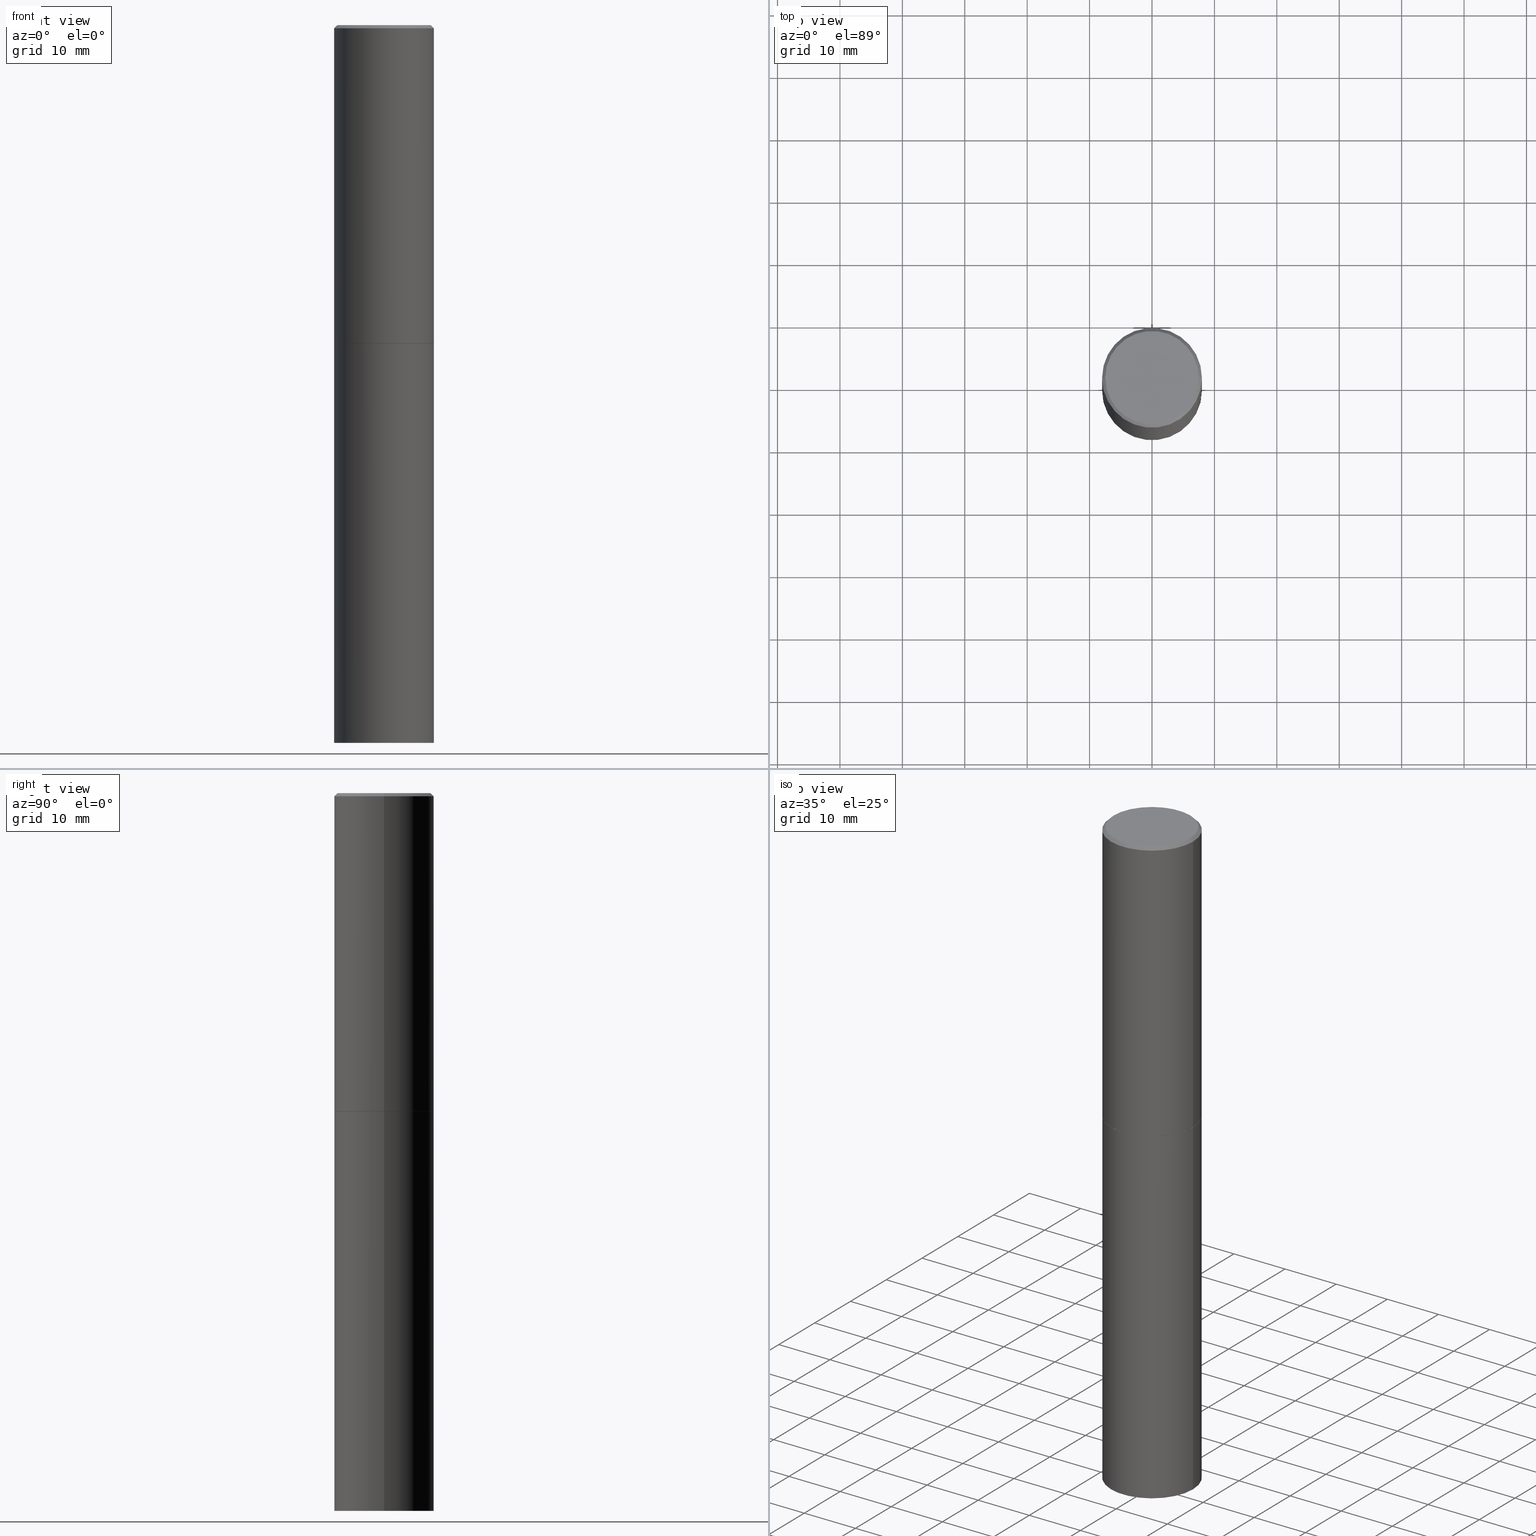
[diagram: canonical four-view strip — front | top / right | iso, engineering-drawing reading convention]
A machine part, canonical four-view strip (front | top / right | iso — engineering-drawing reading convention). The complete STEP part file that produces these views, byte-faithful:
ISO-10303-21;
HEADER;
FILE_DESCRIPTION (( 'STEP AP203' ),
    '1' );
FILE_NAME ('74495.STEP',
    '2024-02-29T12:04:53',
    ( '' ),
    ( '' ),
    'SwSTEP 2.0',
    'SolidWorks 2023',
    '' );
FILE_SCHEMA (( 'CONFIG_CONTROL_DESIGN' ));
ENDSEC;

DATA;
#1 = DIRECTION ( 'NONE',  ( -2.445468806185136597E-29, 3.491481338843145583E-15, 1.000000000000000000 ) ) ;
#2 = CARTESIAN_POINT ( 'NONE',  ( 0.3149500000000000077, -1.800731500508351534E-14, -4.527599999999999625 ) ) ;
#3 = CC_DESIGN_PERSON_AND_ORGANIZATION_ASSIGNMENT ( #151, #43, ( #305 ) ) ;
#4 = MANIFOLD_SOLID_BREP ( 'Body-Move/Copy2[1]', #260 ) ;
#5 = DIRECTION ( 'NONE',  ( 1.000000000000000000, -6.982962677686266711E-15, 4.876176775795936353E-29 ) ) ;
#6 = CIRCLE ( 'NONE', #313, 0.3149499999999997302 ) ;
#7 = DIRECTION ( 'NONE',  ( -0.7071067811865466846, 2.468850131082247989E-15, -0.7071067811865483499 ) ) ;
#8 = DIMENSIONAL_EXPONENTS ( 1.000000000000000000, 0.000000000000000000, 0.000000000000000000, 0.000000000000000000, 0.000000000000000000, 0.000000000000000000, 0.000000000000000000 ) ;
#9 = MANIFOLD_SOLID_BREP ( 'Body-Move/Copy2[2]', #255 ) ;
#10 = COORDINATED_UNIVERSAL_TIME_OFFSET ( 5, 0, .BEHIND. ) ;
#11 = ORIENTED_EDGE ( 'NONE', *, *, #22, .T. ) ;
#12 = AXIS2_PLACEMENT_3D ( 'NONE', #120, #138, #5 ) ;
#13 = EDGE_LOOP ( 'NONE', ( #298, #51, #235, #209 ) ) ;
#14 = CALENDAR_DATE ( 2024, 29, 2 ) ;
#15 = VERTEX_POINT ( 'NONE', #360 ) ;
#16 = DIRECTION ( 'NONE',  ( 0.000000000000000000, 0.000000000000000000, 1.000000000000000000 ) ) ;
#17 = ORIENTED_EDGE ( 'NONE', *, *, #269, .T. ) ;
#18 = AXIS2_PLACEMENT_3D ( 'NONE', #241, #301, #218 ) ;
#19 = ORGANIZATION ( 'UNSPECIFIED', 'UNSPECIFIED', '' ) ;
#20 = ORIENTED_EDGE ( 'NONE', *, *, #95, .T. ) ;
#21 = DATE_AND_TIME ( #215, #115 ) ;
#22 = EDGE_CURVE ( 'NONE', #127, #15, #30, .T. ) ;
#23 = LINE ( 'NONE', #122, #178 ) ;
#24 = EDGE_CURVE ( 'NONE', #232, #320, #361, .T. ) ;
#25 = VERTEX_POINT ( 'NONE', #137 ) ;
#26 = AXIS2_PLACEMENT_3D ( 'NONE', #88, #192, #276 ) ;
#27 = DIRECTION ( 'NONE',  ( -2.445468806185136597E-29, 3.491481338843145583E-15, 1.000000000000000000 ) ) ;
#28 = CARTESIAN_POINT ( 'NONE',  ( 2.199284095337338386E-15, 0.3149499999999929578, -2.007900000000000240 ) ) ;
#29 = DIRECTION ( 'NONE',  ( -2.445468806185136597E-29, 3.491481338843145583E-15, 1.000000000000000000 ) ) ;
#30 = CIRCLE ( 'NONE', #278, 0.3149500000000000077 ) ;
#31 = AXIS2_PLACEMENT_3D ( 'NONE', #277, #125, #177 ) ;
#32 = DIRECTION ( 'NONE',  ( 1.000000000000000000, -6.982962677686267499E-15, 4.876053491004739391E-29 ) ) ;
#33 = DIRECTION ( 'NONE',  ( 1.000000000000000000, -6.982962677686266711E-15, 0.000000000000000000 ) ) ;
#34 = PRODUCT ( '74495', '74495', '', ( #70 ) ) ;
#35 = DIRECTION ( 'NONE',  ( -2.445468806185136597E-29, 3.491481338843145583E-15, 1.000000000000000000 ) ) ;
#36 = LINE ( 'NONE', #283, #37 ) ;
#37 = VECTOR ( 'NONE', #341, 39.37007874015748143 ) ;
#38 = DATE_AND_TIME ( #40, #231 ) ;
#39 = ADVANCED_FACE ( 'NONE', ( #188 ), #134, .T. ) ;
#40 = CALENDAR_DATE ( 2024, 29, 2 ) ;
#41 = ORIENTED_EDGE ( 'NONE', *, *, #240, .T. ) ;
#42 = ADVANCED_FACE ( 'NONE', ( #110 ), #239, .F. ) ;
#43 = PERSON_AND_ORGANIZATION_ROLE ( 'classification_officer' ) ;
#44 = ORIENTED_EDGE ( 'NONE', *, *, #337, .T. ) ;
#45 = AXIS2_PLACEMENT_3D ( 'NONE', #317, #1, #32 ) ;
#46 = ADVANCED_BREP_SHAPE_REPRESENTATION ( '74495', ( #4, #9, #335 ), #267 ) ;
#47 = PRODUCT_DEFINITION_FORMATION_WITH_SPECIFIED_SOURCE ( 'ANY', '', #34, .NOT_KNOWN. ) ;
#48 = APPROVAL_STATUS ( 'not_yet_approved' ) ;
#49 = ORIENTED_EDGE ( 'NONE', *, *, #342, .F. ) ;
#50 = CARTESIAN_POINT ( 'NONE',  ( 0.000000000000000000, 0.000000000000000000, 0.000000000000000000 ) ) ;
#51 = ORIENTED_EDGE ( 'NONE', *, *, #111, .T. ) ;
#52 = ORIENTED_EDGE ( 'NONE', *, *, #289, .T. ) ;
#53 = CARTESIAN_POINT ( 'NONE',  ( 1.107210456688382298E-28, -1.580803090974622389E-14, -4.527599999999999625 ) ) ;
#54 = DIRECTION ( 'NONE',  ( 1.000000000000000000, -6.982962677686266711E-15, 0.000000000000000000 ) ) ;
#55 = DIRECTION ( 'NONE',  ( -1.000000000000000000, 6.982962677686266711E-15, 0.000000000000000000 ) ) ;
#56 = CIRCLE ( 'NONE', #256, 0.3139500000000000068 ) ;
#57 = CARTESIAN_POINT ( 'NONE',  ( 0.000000000000000000, 0.000000000000000000, 0.000000000000000000 ) ) ;
#58 = FACE_OUTER_BOUND ( 'NONE', #291, .T. ) ;
#59 = DIRECTION ( 'NONE',  ( -0.7071067811865232589, 7.493145998870265808E-15, 0.7071067811865715536 ) ) ;
#60 = FACE_OUTER_BOUND ( 'NONE', #100, .T. ) ;
#61 = EDGE_CURVE ( 'NONE', #323, #131, #87, .T. ) ;
#62 = CARTESIAN_POINT ( 'NONE',  ( 4.910256815939134188E-29, -7.010545380263150133E-15, -2.007899999999999352 ) ) ;
#63 = APPLICATION_CONTEXT ( 'configuration controlled 3d designs of mechanical parts and assemblies' ) ;
#64 = CARTESIAN_POINT ( 'NONE',  ( 0.3149499999999998967, -2.199284095337288688E-15, 1.535751875536929289E-29 ) ) ;
#65 = DIRECTION ( 'NONE',  ( 1.000000000000000000, -6.982962677686265922E-15, 4.876176775795935232E-29 ) ) ;
#66 = APPROVAL_ROLE ( '' ) ;
#67 = ORIENTED_EDGE ( 'NONE', *, *, #24, .T. ) ;
#68 = PERSON_AND_ORGANIZATION_ROLE ( 'design_supplier' ) ;
#69 = ORIENTED_EDGE ( 'NONE', *, *, #322, .T. ) ;
#70 = MECHANICAL_CONTEXT ( 'NONE', #63, 'mechanical' ) ;
#71 = UNCERTAINTY_MEASURE_WITH_UNIT (LENGTH_MEASURE( 1.000000000000000082E-05 ), #234, 'distance_accuracy_value', 'NONE');
#72 = ORIENTED_EDGE ( 'NONE', *, *, #217, .T. ) ;
#73 = AXIS2_PLACEMENT_3D ( 'NONE', #89, #123, #198 ) ;
#74 = DIRECTION ( 'NONE',  ( 1.000000000000000000, 0.000000000000000000, 0.000000000000000000 ) ) ;
#75 = VERTEX_POINT ( 'NONE', #334 ) ;
#76 = ORIENTED_EDGE ( 'NONE', *, *, #294, .F. ) ;
#77 = EDGE_CURVE ( 'NONE', #265, #25, #340, .T. ) ;
#78 = CARTESIAN_POINT ( 'NONE',  ( 4.890937612370289799E-31, -6.982962677686315028E-17, -0.02000000000000006981 ) ) ;
#79 = EDGE_CURVE ( 'NONE', #25, #323, #161, .T. ) ;
#80 = LOCAL_TIME ( 7, 4, 53.00000000000000000, #174 ) ;
#81 = DIRECTION ( 'NONE',  ( 1.000000000000000000, -6.982962677686269866E-15, 0.000000000000000000 ) ) ;
#82 = SHAPE_DEFINITION_REPRESENTATION ( #343, #46 ) ;
#83 = DIRECTION ( 'NONE',  ( 1.000000000000000000, -6.982962677686269866E-15, 0.000000000000000000 ) ) ;
#84 = PRODUCT_RELATED_PRODUCT_CATEGORY ( 'detail', '', ( #34 ) ) ;
#85 = APPLICATION_CONTEXT ( 'configuration controlled 3d designs of mechanical parts and assemblies' ) ;
#86 = DIRECTION ( 'NONE',  ( -2.445468806185136877E-29, 3.491481338843145188E-15, 1.000000000000000000 ) ) ;
#87 = CIRCLE ( 'NONE', #285, 0.3149500000000000077 ) ;
#88 = CARTESIAN_POINT ( 'NONE',  ( 4.910256815939134188E-29, -7.010545380263150133E-15, -2.007899999999999352 ) ) ;
#89 = CARTESIAN_POINT ( 'NONE',  ( 0.000000000000000000, 0.000000000000000000, 0.000000000000000000 ) ) ;
#90 = EDGE_CURVE ( 'NONE', #15, #127, #155, .T. ) ;
#91 = CARTESIAN_POINT ( 'NONE',  ( 0.3149500000000000077, -2.199284095337289871E-15, 1.535751875536930130E-29 ) ) ;
#92 = CONICAL_SURFACE ( 'NONE', #292, 0.3139500000000000068, 0.7853981633974141952 ) ;
#93 = FACE_OUTER_BOUND ( 'NONE', #205, .T. ) ;
#94 = DIRECTION ( 'NONE',  ( -2.445468806185136877E-29, 3.491481338843145188E-15, 1.000000000000000000 ) ) ;
#95 = EDGE_CURVE ( 'NONE', #105, #148, #299, .T. ) ;
#96 = CYLINDRICAL_SURFACE ( 'NONE', #12, 0.3149500000000000077 ) ;
#97 = APPROVAL_DATE_TIME ( #107, #219 ) ;
#98 = ORIENTED_EDGE ( 'NONE', *, *, #282, .T. ) ;
#99 = PERSON_AND_ORGANIZATION ( #253, #19 ) ;
#100 = EDGE_LOOP ( 'NONE', ( #41, #67 ) ) ;
#101 = APPROVAL ( #300, 'UNSPECIFIED' ) ;
#102 = PERSON_AND_ORGANIZATION ( #253, #19 ) ;
#103 = ORIENTED_EDGE ( 'NONE', *, *, #180, .F. ) ;
#104 = PERSON_AND_ORGANIZATION ( #253, #19 ) ;
#105 = VERTEX_POINT ( 'NONE', #364 ) ;
#106 = CC_DESIGN_APPROVAL ( #154, ( #47 ) ) ;
#107 = DATE_AND_TIME ( #14, #197 ) ;
#108 = ORIENTED_EDGE ( 'NONE', *, *, #90, .F. ) ;
#109 = DIRECTION ( 'NONE',  ( 1.000000000000000000, -6.982962677686266711E-15, 0.000000000000000000 ) ) ;
#110 = FACE_OUTER_BOUND ( 'NONE', #132, .T. ) ;
#111 = EDGE_CURVE ( 'NONE', #25, #265, #130, .T. ) ;
#112 = DIRECTION ( 'NONE',  ( -2.438088387897960049E-29, 3.491481338843145188E-15, 1.000000000000000000 ) ) ;
#113 = CARTESIAN_POINT ( 'NONE',  ( 4.910256815939134188E-29, -7.010545380263150133E-15, -2.007899999999999352 ) ) ;
#114 = ORIENTED_EDGE ( 'NONE', *, *, #251, .T. ) ;
#115 = LOCAL_TIME ( 7, 4, 53.00000000000000000, #185 ) ;
#116 = FACE_OUTER_BOUND ( 'NONE', #297, .T. ) ;
#117 = ADVANCED_FACE ( 'NONE', ( #246 ), #230, .T. ) ;
#118 = CC_DESIGN_PERSON_AND_ORGANIZATION_ASSIGNMENT ( #237, #324, ( #47 ) ) ;
#119 = DIRECTION ( 'NONE',  ( -2.445468806185136877E-29, 3.491481338843145188E-15, 1.000000000000000000 ) ) ;
#120 = CARTESIAN_POINT ( 'NONE',  ( 0.000000000000000000, 0.000000000000000000, 0.000000000000000000 ) ) ;
#121 = AXIS2_PLACEMENT_3D ( 'NONE', #78, #187, #157 ) ;
#122 = CARTESIAN_POINT ( 'NONE',  ( -0.3139500000000000068, -4.779796461344314367E-15, -2.007899999999999352 ) ) ;
#123 = DIRECTION ( 'NONE',  ( -2.445468806185136597E-29, 3.491481338843145583E-15, 1.000000000000000000 ) ) ;
#124 = PERSON_AND_ORGANIZATION ( #253, #19 ) ;
#125 = DIRECTION ( 'NONE',  ( -2.445468806185136597E-29, 3.491481338843145583E-15, 1.000000000000000000 ) ) ;
#126 = EDGE_LOOP ( 'NONE', ( #355, #288, #72, #52 ) ) ;
#127 = VERTEX_POINT ( 'NONE', #162 ) ;
#128 = SECURITY_CLASSIFICATION_LEVEL ( 'unclassified' ) ;
#129 = ORIENTED_EDGE ( 'NONE', *, *, #289, .F. ) ;
#130 = CIRCLE ( 'NONE', #221, 0.3149500000000000077 ) ;
#131 = VERTEX_POINT ( 'NONE', #365 ) ;
#132 = EDGE_LOOP ( 'NONE', ( #263, #49 ) ) ;
#133 = DIRECTION ( 'NONE',  ( 1.000000000000000000, -6.982962677686266711E-15, 0.000000000000000000 ) ) ;
#134 = CYLINDRICAL_SURFACE ( 'NONE', #348, 0.3149500000000000077 ) ;
#135 = AXIS2_PLACEMENT_3D ( 'NONE', #170, #140, #167 ) ;
#136 = DIRECTION ( 'NONE',  ( 2.438088387897960049E-29, -3.491481338843145188E-15, -1.000000000000000000 ) ) ;
#137 = CARTESIAN_POINT ( 'NONE',  ( -0.3149500000000000077, -9.171433798728249845E-15, -4.527599999999999625 ) ) ;
#138 = DIRECTION ( 'NONE',  ( -2.445468806185136597E-29, 3.491481338843145583E-15, 1.000000000000000000 ) ) ;
#139 = ADVANCED_FACE ( 'NONE', ( #270 ), #274, .F. ) ;
#140 = DIRECTION ( 'NONE',  ( 2.438088387897960049E-29, -3.491481338843145188E-15, -1.000000000000000000 ) ) ;
#141 = PLANE ( 'NONE',  #135 ) ;
#142 = CYLINDRICAL_SURFACE ( 'NONE', #273, 0.3149499999999998967 ) ;
#143 = CC_DESIGN_APPROVAL ( #101, ( #305 ) ) ;
#144 = DIRECTION ( 'NONE',  ( -2.445468806185136597E-29, 3.491481338843145583E-15, 1.000000000000000000 ) ) ;
#145 = LENGTH_MEASURE_WITH_UNIT ( LENGTH_MEASURE( 0.02539999999999999897 ), #350 );
#146 = EDGE_CURVE ( 'NONE', #131, #323, #186, .T. ) ;
#147 = CALENDAR_DATE ( 2024, 29, 2 ) ;
#148 = VERTEX_POINT ( 'NONE', #307 ) ;
#149 = COORDINATED_UNIVERSAL_TIME_OFFSET ( 5, 0, .BEHIND. ) ;
#150 = ORIENTED_EDGE ( 'NONE', *, *, #342, .T. ) ;
#151 = PERSON_AND_ORGANIZATION ( #253, #19 ) ;
#152 = ORIENTED_EDGE ( 'NONE', *, *, #90, .T. ) ;
#153 = EDGE_LOOP ( 'NONE', ( #328, #268 ) ) ;
#154 = APPROVAL ( #202, 'UNSPECIFIED' ) ;
#155 = CIRCLE ( 'NONE', #248, 0.3149500000000000077 ) ;
#156 = ORIENTED_EDGE ( 'NONE', *, *, #95, .F. ) ;
#157 = DIRECTION ( 'NONE',  ( -1.000000000000000000, 6.982962677686266711E-15, 0.000000000000000000 ) ) ;
#158 = CC_DESIGN_PERSON_AND_ORGANIZATION_ASSIGNMENT ( #124, #352, ( #34 ) ) ;
#159 = ADVANCED_FACE ( 'NONE', ( #58 ), #92, .T. ) ;
#160 = APPROVAL_DATE_TIME ( #21, #101 ) ;
#161 = LINE ( 'NONE', #213, #201 ) ;
#162 = CARTESIAN_POINT ( 'NONE',  ( -0.3149500000000000077, -1.300587416574147649E-15, -2.006899999999999462 ) ) ;
#163 = ADVANCED_FACE ( 'NONE', ( #329 ), #272, .T. ) ;
#164 = AXIS2_PLACEMENT_3D ( 'NONE', #62, #194, #33 ) ;
#165 = DIRECTION ( 'NONE',  ( -2.445468806185136597E-29, 3.491481338843145583E-15, 1.000000000000000000 ) ) ;
#166 = CARTESIAN_POINT ( 'NONE',  ( 4.910256815939134188E-29, -7.010545380263150133E-15, -2.007899999999999352 ) ) ;
#167 = DIRECTION ( 'NONE',  ( -1.000000000000000000, 6.982962677686265922E-15, -4.876176775795935793E-29 ) ) ;
#168 = AXIS2_PLACEMENT_3D ( 'NONE', #28, #136, #220 ) ;
#169 = CIRCLE ( 'NONE', #45, 0.2949499999999997124 ) ;
#170 = CARTESIAN_POINT ( 'NONE',  ( 2.199284095337399917E-15, 0.3149499999999842426, -4.527600000000000513 ) ) ;
#171 = PLANE ( 'NONE',  #279 ) ;
#172 = DIRECTION ( 'NONE',  ( -2.445468806185136877E-29, 3.491481338843145188E-15, 1.000000000000000000 ) ) ;
#173 = DIRECTION ( 'NONE',  ( -2.445468806185136597E-29, 3.491481338843145583E-15, 1.000000000000000000 ) ) ;
#174 = COORDINATED_UNIVERSAL_TIME_OFFSET ( 5, 0, .BEHIND. ) ;
#175 = ORIENTED_EDGE ( 'NONE', *, *, #77, .T. ) ;
#176 = PRODUCT_DEFINITION ( 'UNKNOWN', '', #47, #212 ) ;
#177 = DIRECTION ( 'NONE',  ( 1.000000000000000000, -6.982962677686266711E-15, 0.000000000000000000 ) ) ;
#178 = VECTOR ( 'NONE', #59, 39.37007874015748854 ) ;
#179 = ORIENTED_EDGE ( 'NONE', *, *, #217, .F. ) ;
#180 = EDGE_CURVE ( 'NONE', #207, #127, #23, .T. ) ;
#181 = CALENDAR_DATE ( 2024, 29, 2 ) ;
#182 = ORIENTED_EDGE ( 'NONE', *, *, #77, .F. ) ;
#183 = PERSON_AND_ORGANIZATION_ROLE ( 'creator' ) ;
#184 = EDGE_LOOP ( 'NONE', ( #182, #353 ) ) ;
#185 = COORDINATED_UNIVERSAL_TIME_OFFSET ( 5, 0, .BEHIND. ) ;
#186 = CIRCLE ( 'NONE', #26, 0.3149500000000000077 ) ;
#187 = DIRECTION ( 'NONE',  ( 2.445468806185136597E-29, -3.491481338843145583E-15, -1.000000000000000000 ) ) ;
#188 = FACE_OUTER_BOUND ( 'NONE', #327, .T. ) ;
#189 = CARTESIAN_POINT ( 'NONE',  ( 4.890937612370289799E-31, -6.982962677686315028E-17, -0.02000000000000006981 ) ) ;
#190 = CARTESIAN_POINT ( 'NONE',  ( 4.907811347132949146E-29, -7.007053898924306337E-15, -2.006899999999999462 ) ) ;
#191 = AXIS2_PLACEMENT_3D ( 'NONE', #113, #112, #336 ) ;
#192 = DIRECTION ( 'NONE',  ( -2.445468806185136597E-29, 3.491481338843145583E-15, 1.000000000000000000 ) ) ;
#193 = DIRECTION ( 'NONE',  ( -1.000000000000000000, 6.982962677686265922E-15, -4.876176775795935793E-29 ) ) ;
#194 = DIRECTION ( 'NONE',  ( -2.445468806185136597E-29, 3.491481338843145583E-15, 1.000000000000000000 ) ) ;
#195 = AXIS2_PLACEMENT_3D ( 'NONE', #189, #304, #55 ) ;
#196 = LOCAL_TIME ( 7, 4, 53.00000000000000000, #149 ) ;
#197 = LOCAL_TIME ( 7, 4, 53.00000000000000000, #346 ) ;
#198 = DIRECTION ( 'NONE',  ( 1.000000000000000000, -6.982962677686265922E-15, 4.876176775795935232E-29 ) ) ;
#199 = CARTESIAN_POINT ( 'NONE',  ( -0.3139500000000000068, -4.774498006996092754E-15, -2.007899999999999352 ) ) ;
#200 = CARTESIAN_POINT ( 'NONE',  ( 4.910256815939134188E-29, -7.010545380263150133E-15, -2.007899999999999352 ) ) ;
#201 = VECTOR ( 'NONE', #86, 39.37007874015748143 ) ;
#202 = APPROVAL_STATUS ( 'not_yet_approved' ) ;
#203 = CC_DESIGN_PERSON_AND_ORGANIZATION_ASSIGNMENT ( #206, #183, ( #176 ) ) ;
#204 = ORIENTED_EDGE ( 'NONE', *, *, #322, .F. ) ;
#205 = EDGE_LOOP ( 'NONE', ( #152, #17, #156, #204 ) ) ;
#206 = PERSON_AND_ORGANIZATION ( #253, #19 ) ;
#207 = VERTEX_POINT ( 'NONE', #199 ) ;
#208 = APPROVAL_PERSON_ORGANIZATION ( #99, #154, #66 ) ;
#209 = ORIENTED_EDGE ( 'NONE', *, *, #61, .F. ) ;
#210 = ORIENTED_EDGE ( 'NONE', *, *, #22, .F. ) ;
#211 = CARTESIAN_POINT ( 'NONE',  ( 4.907811347132949146E-29, -7.007053898924306337E-15, -2.006899999999999462 ) ) ;
#212 = DESIGN_CONTEXT ( 'detailed design', #85, 'design' ) ;
#213 = CARTESIAN_POINT ( 'NONE',  ( -0.3149500000000000077, 2.237854346276435590E-15, -1.549218606675782676E-29 ) ) ;
#214 = VECTOR ( 'NONE', #94, 39.37007874015748143 ) ;
#215 = CALENDAR_DATE ( 2024, 29, 2 ) ;
#216 = DIRECTION ( 'NONE',  ( -2.445468806185136597E-29, 3.491481338843145583E-15, 1.000000000000000000 ) ) ;
#217 = EDGE_CURVE ( 'NONE', #320, #148, #224, .T. ) ;
#218 = DIRECTION ( 'NONE',  ( 1.000000000000000000, -6.982962677686267499E-15, 4.876053491004739391E-29 ) ) ;
#219 = APPROVAL ( #48, 'UNSPECIFIED' ) ;
#220 = DIRECTION ( 'NONE',  ( -1.000000000000000000, 6.982962677686265922E-15, -4.876176775795935793E-29 ) ) ;
#221 = AXIS2_PLACEMENT_3D ( 'NONE', #333, #271, #83 ) ;
#222 = CARTESIAN_POINT ( 'NONE',  ( 0.2949499999999997124, -2.127023677808858103E-15, 8.537024980215462707E-18 ) ) ;
#223 = FACE_OUTER_BOUND ( 'NONE', #184, .T. ) ;
#224 = LINE ( 'NONE', #287, #326 ) ;
#225 = ADVANCED_FACE ( 'NONE', ( #311 ), #96, .T. ) ;
#226 = CYLINDRICAL_SURFACE ( 'NONE', #73, 0.3149499999999998967 ) ;
#227 = CARTESIAN_POINT ( 'NONE',  ( 0.000000000000000000, 0.000000000000000000, 0.000000000000000000 ) ) ;
#228 = CC_DESIGN_DATE_AND_TIME_ASSIGNMENT ( #354, #262, ( #305 ) ) ;
#229 = APPROVAL_ROLE ( '' ) ;
#230 = CONICAL_SURFACE ( 'NONE', #195, 0.3149499999999997302, 0.7853981633974471688 ) ;
#231 = LOCAL_TIME ( 7, 4, 53.00000000000000000, #10 ) ;
#232 = VERTEX_POINT ( 'NONE', #222 ) ;
#233 =( NAMED_UNIT ( * ) PLANE_ANGLE_UNIT ( ) SI_UNIT ( $, .RADIAN. ) );
#234 =( CONVERSION_BASED_UNIT ( 'INCH', #145 ) LENGTH_UNIT ( ) NAMED_UNIT ( #8 ) );
#235 = ORIENTED_EDGE ( 'NONE', *, *, #294, .T. ) ;
#236 = CIRCLE ( 'NONE', #31, 0.3139500000000000068 ) ;
#237 = PERSON_AND_ORGANIZATION ( #253, #19 ) ;
#238 = ORIENTED_EDGE ( 'NONE', *, *, #251, .F. ) ;
#239 = PLANE ( 'NONE',  #191 ) ;
#240 = EDGE_CURVE ( 'NONE', #320, #232, #169, .T. ) ;
#241 = CARTESIAN_POINT ( 'NONE',  ( -2.087702828670439639E-46, 2.980686340760894400E-32, 8.537024980200822558E-18 ) ) ;
#242 = CC_DESIGN_SECURITY_CLASSIFICATION ( #305, ( #47 ) ) ;
#243 = DIRECTION ( 'NONE',  ( 1.000000000000000000, -6.982962677686266711E-15, 4.876176775795936353E-29 ) ) ;
#244 = DIRECTION ( 'NONE',  ( 1.000000000000000000, -6.982962677686269866E-15, 0.000000000000000000 ) ) ;
#245 = ADVANCED_FACE ( 'NONE', ( #223 ), #141, .T. ) ;
#246 = FACE_OUTER_BOUND ( 'NONE', #347, .T. ) ;
#247 = CARTESIAN_POINT ( 'NONE',  ( -0.3149499999999998967, 2.237854346276434801E-15, -1.549218606675782116E-29 ) ) ;
#248 = AXIS2_PLACEMENT_3D ( 'NONE', #211, #359, #306 ) ;
#249 = CONICAL_SURFACE ( 'NONE', #164, 0.3139500000000000068, 0.7853981633974141952 ) ;
#250 = DIRECTION ( 'NONE',  ( 0.7071067811865232589, -2.468850131082003836E-15, 0.7071067811865715536 ) ) ;
#251 = EDGE_CURVE ( 'NONE', #75, #15, #252, .T. ) ;
#252 = LINE ( 'NONE', #338, #349 ) ;
#253 = PERSON ( 'UNSPECIFIED', 'UNSPECIFIED', 'UNSPECIFIED', ('UNSPECIFIED'), ('UNSPECIFIED'), ('UNSPECIFIED') ) ;
#254 = CARTESIAN_POINT ( 'NONE',  ( -0.2949499999999997124, 2.094539655171993740E-15, 8.537024980186296424E-18 ) ) ;
#255 = CLOSED_SHELL ( 'NONE', ( #159, #258, #117, #163, #315, #302, #42, #309 ) ) ;
#256 = AXIS2_PLACEMENT_3D ( 'NONE', #200, #173, #308 ) ;
#257 = LINE ( 'NONE', #247, #330 ) ;
#258 = ADVANCED_FACE ( 'NONE', ( #93 ), #226, .T. ) ;
#259 = ORIENTED_EDGE ( 'NONE', *, *, #24, .F. ) ;
#260 = CLOSED_SHELL ( 'NONE', ( #39, #245, #139, #225 ) ) ;
#261 = CC_DESIGN_APPROVAL ( #219, ( #176 ) ) ;
#262 = DATE_TIME_ROLE ( 'classification_date' ) ;
#263 = ORIENTED_EDGE ( 'NONE', *, *, #337, .F. ) ;
#264 =( NAMED_UNIT ( * ) SI_UNIT ( $, .STERADIAN. ) SOLID_ANGLE_UNIT ( ) );
#265 = VERTEX_POINT ( 'NONE', #2 ) ;
#266 = ORIENTED_EDGE ( 'NONE', *, *, #269, .F. ) ;
#267 =( GEOMETRIC_REPRESENTATION_CONTEXT ( 3 ) GLOBAL_UNCERTAINTY_ASSIGNED_CONTEXT ( ( #71 ) ) GLOBAL_UNIT_ASSIGNED_CONTEXT ( ( #234, #233, #264 ) ) REPRESENTATION_CONTEXT ( 'NONE', 'WORKASPACE' ) );
#268 = ORIENTED_EDGE ( 'NONE', *, *, #61, .T. ) ;
#269 = EDGE_CURVE ( 'NONE', #127, #148, #257, .T. ) ;
#270 = FACE_OUTER_BOUND ( 'NONE', #153, .T. ) ;
#271 = DIRECTION ( 'NONE',  ( -2.445468806185136597E-29, 3.491481338843145583E-15, 1.000000000000000000 ) ) ;
#272 = CONICAL_SURFACE ( 'NONE', #121, 0.3149499999999997302, 0.7853981633974471688 ) ;
#273 = AXIS2_PLACEMENT_3D ( 'NONE', #227, #144, #65 ) ;
#274 = PLANE ( 'NONE',  #168 ) ;
#275 = CARTESIAN_POINT ( 'NONE',  ( 4.890937612370289799E-31, -6.982962677686315028E-17, -0.02000000000000006981 ) ) ;
#276 = DIRECTION ( 'NONE',  ( 1.000000000000000000, -6.982962677686269866E-15, 0.000000000000000000 ) ) ;
#277 = CARTESIAN_POINT ( 'NONE',  ( 4.910256815939134188E-29, -7.010545380263150133E-15, -2.007899999999999352 ) ) ;
#278 = AXIS2_PLACEMENT_3D ( 'NONE', #190, #363, #133 ) ;
#279 = AXIS2_PLACEMENT_3D ( 'NONE', #316, #314, #193 ) ;
#280 = LINE ( 'NONE', #91, #214 ) ;
#281 = FACE_OUTER_BOUND ( 'NONE', #358, .T. ) ;
#282 = EDGE_CURVE ( 'NONE', #232, #105, #36, .T. ) ;
#283 = CARTESIAN_POINT ( 'NONE',  ( 0.3149499999999997302, -2.230543471175005478E-15, -0.02000000000000006981 ) ) ;
#284 = CC_DESIGN_PERSON_AND_ORGANIZATION_ASSIGNMENT ( #321, #68, ( #47 ) ) ;
#285 = AXIS2_PLACEMENT_3D ( 'NONE', #303, #216, #81 ) ;
#286 = VECTOR ( 'NONE', #172, 39.37007874015748143 ) ;
#287 = CARTESIAN_POINT ( 'NONE',  ( -0.3149499999999997302, 2.129454468560424601E-15, -0.02000000000000006981 ) ) ;
#288 = ORIENTED_EDGE ( 'NONE', *, *, #240, .F. ) ;
#289 = EDGE_CURVE ( 'NONE', #148, #105, #6, .T. ) ;
#290 = DATE_AND_TIME ( #147, #80 ) ;
#291 = EDGE_LOOP ( 'NONE', ( #44, #295, #108, #238 ) ) ;
#292 = AXIS2_PLACEMENT_3D ( 'NONE', #166, #29, #109 ) ;
#293 = DATE_TIME_ROLE ( 'creation_date' ) ;
#294 = EDGE_CURVE ( 'NONE', #265, #131, #280, .T. ) ;
#295 = ORIENTED_EDGE ( 'NONE', *, *, #180, .T. ) ;
#296 = APPROVAL_DATE_TIME ( #290, #154 ) ;
#297 = EDGE_LOOP ( 'NONE', ( #103, #150, #114, #210 ) ) ;
#298 = ORIENTED_EDGE ( 'NONE', *, *, #79, .F. ) ;
#299 = CIRCLE ( 'NONE', #318, 0.3149499999999997302 ) ;
#300 = APPROVAL_STATUS ( 'not_yet_approved' ) ;
#301 = DIRECTION ( 'NONE',  ( -2.445468806185136597E-29, 3.491481338843145583E-15, 1.000000000000000000 ) ) ;
#302 = ADVANCED_FACE ( 'NONE', ( #116 ), #249, .T. ) ;
#303 = CARTESIAN_POINT ( 'NONE',  ( 4.910256815939134188E-29, -7.010545380263150133E-15, -2.007899999999999352 ) ) ;
#304 = DIRECTION ( 'NONE',  ( 2.445468806185136597E-29, -3.491481338843145583E-15, -1.000000000000000000 ) ) ;
#305 = SECURITY_CLASSIFICATION ( '', '', #128 ) ;
#306 = DIRECTION ( 'NONE',  ( 1.000000000000000000, -6.982962677686266711E-15, 0.000000000000000000 ) ) ;
#307 = CARTESIAN_POINT ( 'NONE',  ( -0.3149499999999997302, 2.129454468560424601E-15, -0.02000000000000006981 ) ) ;
#308 = DIRECTION ( 'NONE',  ( 1.000000000000000000, -6.982962677686266711E-15, 0.000000000000000000 ) ) ;
#309 = ADVANCED_FACE ( 'NONE', ( #60 ), #171, .F. ) ;
#310 = APPROVAL_ROLE ( '' ) ;
#311 = FACE_OUTER_BOUND ( 'NONE', #13, .T. ) ;
#312 = AXIS2_PLACEMENT_3D ( 'NONE', #53, #165, #244 ) ;
#313 = AXIS2_PLACEMENT_3D ( 'NONE', #339, #35, #344 ) ;
#314 = DIRECTION ( 'NONE',  ( 2.438088387897960049E-29, -3.491481338843145188E-15, -1.000000000000000000 ) ) ;
#315 = ADVANCED_FACE ( 'NONE', ( #281 ), #142, .T. ) ;
#316 = CARTESIAN_POINT ( 'NONE',  ( 2.059624841783562091E-15, 0.2949499999999997124, -1.025543908401684366E-15 ) ) ;
#317 = CARTESIAN_POINT ( 'NONE',  ( -2.087702828670439639E-46, 2.980686340760894400E-32, 8.537024980200822558E-18 ) ) ;
#318 = AXIS2_PLACEMENT_3D ( 'NONE', #275, #27, #54 ) ;
#319 = APPLICATION_PROTOCOL_DEFINITION ( 'international standard', 'config_control_design', 1994, #85 ) ;
#320 = VERTEX_POINT ( 'NONE', #254 ) ;
#321 = PERSON_AND_ORGANIZATION ( #253, #19 ) ;
#322 = EDGE_CURVE ( 'NONE', #15, #105, #366, .T. ) ;
#323 = VERTEX_POINT ( 'NONE', #345 ) ;
#324 = PERSON_AND_ORGANIZATION_ROLE ( 'creator' ) ;
#325 = ORIENTED_EDGE ( 'NONE', *, *, #79, .T. ) ;
#326 = VECTOR ( 'NONE', #7, 39.37007874015748143 ) ;
#327 = EDGE_LOOP ( 'NONE', ( #175, #325, #351, #76 ) ) ;
#328 = ORIENTED_EDGE ( 'NONE', *, *, #146, .T. ) ;
#329 = FACE_OUTER_BOUND ( 'NONE', #126, .T. ) ;
#330 = VECTOR ( 'NONE', #119, 39.37007874015748143 ) ;
#331 = DIRECTION ( 'NONE',  ( -2.445468806185136597E-29, 3.491481338843145583E-15, 1.000000000000000000 ) ) ;
#332 = CC_DESIGN_DATE_AND_TIME_ASSIGNMENT ( #38, #293, ( #176 ) ) ;
#333 = CARTESIAN_POINT ( 'NONE',  ( 1.107210456688382298E-28, -1.580803090974622389E-14, -4.527599999999999625 ) ) ;
#334 = CARTESIAN_POINT ( 'NONE',  ( 0.3139500000000000068, -9.202846512922753201E-15, -2.007899999999999352 ) ) ;
#335 = AXIS2_PLACEMENT_3D ( 'NONE', #50, #16, #74 ) ;
#336 = DIRECTION ( 'NONE',  ( 1.000000000000000000, -6.982962677686265922E-15, 4.876176775795935793E-29 ) ) ;
#337 = EDGE_CURVE ( 'NONE', #75, #207, #56, .T. ) ;
#338 = CARTESIAN_POINT ( 'NONE',  ( 0.3139500000000000068, -9.202846512922753201E-15, -2.007899999999999352 ) ) ;
#339 = CARTESIAN_POINT ( 'NONE',  ( 4.890937612370289799E-31, -6.982962677686315028E-17, -0.02000000000000006981 ) ) ;
#340 = CIRCLE ( 'NONE', #312, 0.3149500000000000077 ) ;
#341 = DIRECTION ( 'NONE',  ( 0.7071067811865466846, -7.319954787623252890E-15, -0.7071067811865483499 ) ) ;
#342 = EDGE_CURVE ( 'NONE', #207, #75, #236, .T. ) ;
#343 = PRODUCT_DEFINITION_SHAPE ( 'NONE', 'NONE',  #176 ) ;
#344 = DIRECTION ( 'NONE',  ( 1.000000000000000000, -6.982962677686266711E-15, 0.000000000000000000 ) ) ;
#345 = CARTESIAN_POINT ( 'NONE',  ( -0.3149500000000000077, -9.171433798728249845E-15, -2.007899999999999352 ) ) ;
#346 = COORDINATED_UNIVERSAL_TIME_OFFSET ( 5, 0, .BEHIND. ) ;
#347 = EDGE_LOOP ( 'NONE', ( #259, #98, #20, #179 ) ) ;
#348 = AXIS2_PLACEMENT_3D ( 'NONE', #57, #331, #243 ) ;
#349 = VECTOR ( 'NONE', #250, 39.37007874015748854 ) ;
#350 =( LENGTH_UNIT ( ) NAMED_UNIT ( * ) SI_UNIT ( $, .METRE. ) );
#351 = ORIENTED_EDGE ( 'NONE', *, *, #146, .F. ) ;
#352 = PERSON_AND_ORGANIZATION_ROLE ( 'design_owner' ) ;
#353 = ORIENTED_EDGE ( 'NONE', *, *, #111, .F. ) ;
#354 = DATE_AND_TIME ( #181, #196 ) ;
#355 = ORIENTED_EDGE ( 'NONE', *, *, #282, .F. ) ;
#356 = APPROVAL_PERSON_ORGANIZATION ( #104, #101, #310 ) ;
#357 = APPLICATION_PROTOCOL_DEFINITION ( 'international standard', 'config_control_design', 1994, #63 ) ;
#358 = EDGE_LOOP ( 'NONE', ( #266, #11, #69, #129 ) ) ;
#359 = DIRECTION ( 'NONE',  ( -2.445468806185136597E-29, 3.491481338843145583E-15, 1.000000000000000000 ) ) ;
#360 = CARTESIAN_POINT ( 'NONE',  ( 0.3149500000000000077, -9.206337994261596208E-15, -2.006899999999999462 ) ) ;
#361 = CIRCLE ( 'NONE', #18, 0.2949499999999997124 ) ;
#362 = APPROVAL_PERSON_ORGANIZATION ( #102, #219, #229 ) ;
#363 = DIRECTION ( 'NONE',  ( -2.445468806185136597E-29, 3.491481338843145583E-15, 1.000000000000000000 ) ) ;
#364 = CARTESIAN_POINT ( 'NONE',  ( 0.3149499999999997302, -2.230543471175005478E-15, -0.02000000000000006981 ) ) ;
#365 = CARTESIAN_POINT ( 'NONE',  ( 0.3149500000000000077, -9.209829475600440793E-15, -2.007899999999999352 ) ) ;
#366 = LINE ( 'NONE', #64, #286 ) ;
ENDSEC;
END-ISO-10303-21;
